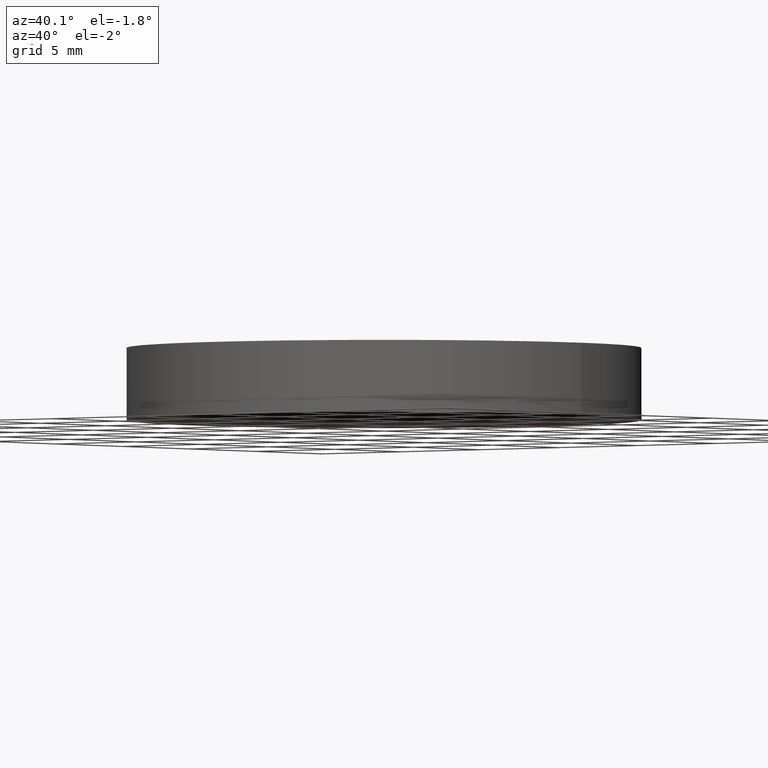
[diagram: clean part render]
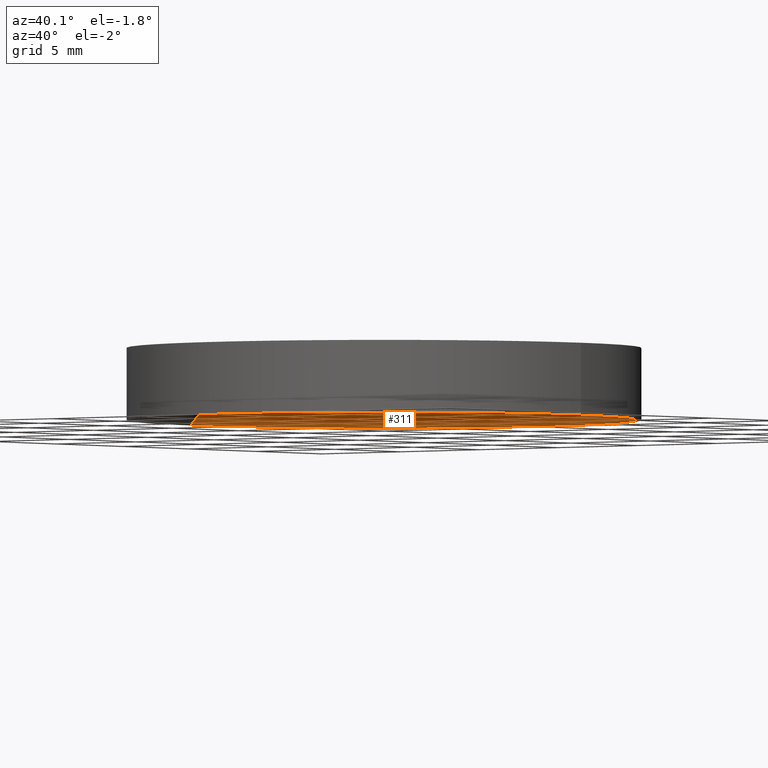
[diagram: same view with one face highlighted and labeled with its STEP entity id]
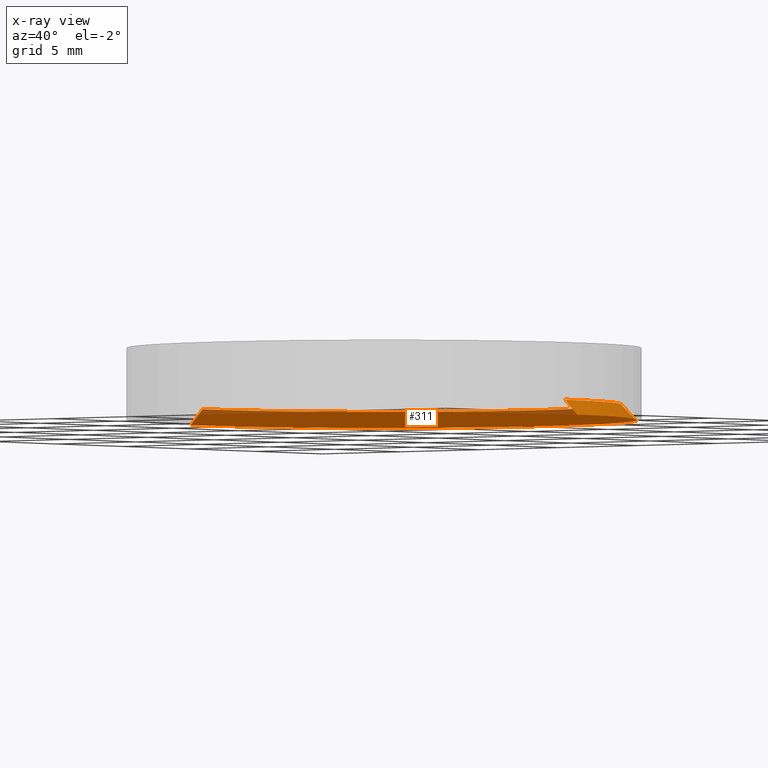
[diagram: x-ray of the same camera — body ghosted, the highlighted face saturated]
A machine part, auxiliary view. The second image highlights one B-rep face of the part: STEP entity #311.
The next image is the same camera in x-ray: the body ghosted, the highlighted face saturated — about 9% of this face is hidden behind the body in this view.
In plain terms, the highlighted conical surface has half-angle 45 deg.
Its self-contained STEP definition (entity closure, byte-faithful):
#7 = AXIS2_PLACEMENT_3D ( 'NONE', #103, #171, #297 ) ;
#26 = LINE ( 'NONE', #89, #327 ) ;
#34 = EDGE_CURVE ( 'NONE', #352, #310, #26, .T. ) ;
#40 = CARTESIAN_POINT ( 'NONE',  ( 0.000000000000000000, 0.000000000000000000, 0.000000000000000000 ) ) ;
#53 = ORIENTED_EDGE ( 'NONE', *, *, #340, .T. ) ;
#89 = CARTESIAN_POINT ( 'NONE',  ( 11.50000000000000000, 1.408343819019456176E-15, 0.7500000000000093259 ) ) ;
#90 = CARTESIAN_POINT ( 'NONE',  ( 11.50000000000000000, 1.454268073987482448E-15, 0.7500000000000000000 ) ) ;
#91 = ORIENTED_EDGE ( 'NONE', *, *, #419, .F. ) ;
#93 = CARTESIAN_POINT ( 'NONE',  ( -11.50000000000000000, 0.000000000000000000, 0.7500000000000093259 ) ) ;
#103 = CARTESIAN_POINT ( 'NONE',  ( 0.000000000000000000, 0.000000000000000000, 0.7500000000000000000 ) ) ;
#129 = CARTESIAN_POINT ( 'NONE',  ( -12.25000000000000711, 0.000000000000000000, 0.000000000000000000 ) ) ;
#137 = AXIS2_PLACEMENT_3D ( 'NONE', #40, #299, #332 ) ;
#148 = FACE_OUTER_BOUND ( 'NONE', #256, .T. ) ;
#156 = LINE ( 'NONE', #93, #176 ) ;
#164 = CARTESIAN_POINT ( 'NONE',  ( -11.50000000000000000, 0.000000000000000000, 0.7500000000000000000 ) ) ;
#171 = DIRECTION ( 'NONE',  ( 0.000000000000000000, 0.000000000000000000, -1.000000000000000000 ) ) ;
#176 = VECTOR ( 'NONE', #414, 1000.000000000000000 ) ;
#183 = EDGE_CURVE ( 'NONE', #310, #344, #346, .T. ) ;
#193 = ORIENTED_EDGE ( 'NONE', *, *, #34, .F. ) ;
#222 = VERTEX_POINT ( 'NONE', #164 ) ;
#249 = DIRECTION ( 'NONE',  ( 0.000000000000000000, 0.000000000000000000, -1.000000000000000000 ) ) ;
#256 = EDGE_LOOP ( 'NONE', ( #193, #91, #53, #372 ) ) ;
#258 = AXIS2_PLACEMENT_3D ( 'NONE', #337, #249, #322 ) ;
#297 = DIRECTION ( 'NONE',  ( -1.000000000000000000, 0.000000000000000000, 0.000000000000000000 ) ) ;
#299 = DIRECTION ( 'NONE',  ( 0.000000000000000000, 0.000000000000000000, 1.000000000000000000 ) ) ;
#310 = VERTEX_POINT ( 'NONE', #336 ) ;
#311 = ADVANCED_FACE ( 'NONE', ( #148 ), #339, .F. ) ;
#322 = DIRECTION ( 'NONE',  ( -1.000000000000000000, 0.000000000000000000, 0.000000000000000000 ) ) ;
#327 = VECTOR ( 'NONE', #338, 1000.000000000000000 ) ;
#332 = DIRECTION ( 'NONE',  ( 1.000000000000000000, 0.000000000000000000, 0.000000000000000000 ) ) ;
#334 = CIRCLE ( 'NONE', #7, 11.50000000000000000 ) ;
#336 = CARTESIAN_POINT ( 'NONE',  ( 12.25000000000000711, 1.500192328955508523E-15, 0.000000000000000000 ) ) ;
#337 = CARTESIAN_POINT ( 'NONE',  ( 0.000000000000000000, 0.000000000000000000, 0.7500000000000093259 ) ) ;
#338 = DIRECTION ( 'NONE',  ( 0.7071067811865467956, 8.659560562354925463E-17, -0.7071067811865483499 ) ) ;
#339 = CONICAL_SURFACE ( 'NONE', #258, 11.50000000000000000, 0.7853981633974471688 ) ;
#340 = EDGE_CURVE ( 'NONE', #222, #344, #156, .T. ) ;
#344 = VERTEX_POINT ( 'NONE', #129 ) ;
#346 = CIRCLE ( 'NONE', #137, 12.25000000000000711 ) ;
#352 = VERTEX_POINT ( 'NONE', #90 ) ;
#372 = ORIENTED_EDGE ( 'NONE', *, *, #183, .F. ) ;
#414 = DIRECTION ( 'NONE',  ( -0.7071067811865467956, 0.000000000000000000, -0.7071067811865483499 ) ) ;
#419 = EDGE_CURVE ( 'NONE', #222, #352, #334, .T. ) ;